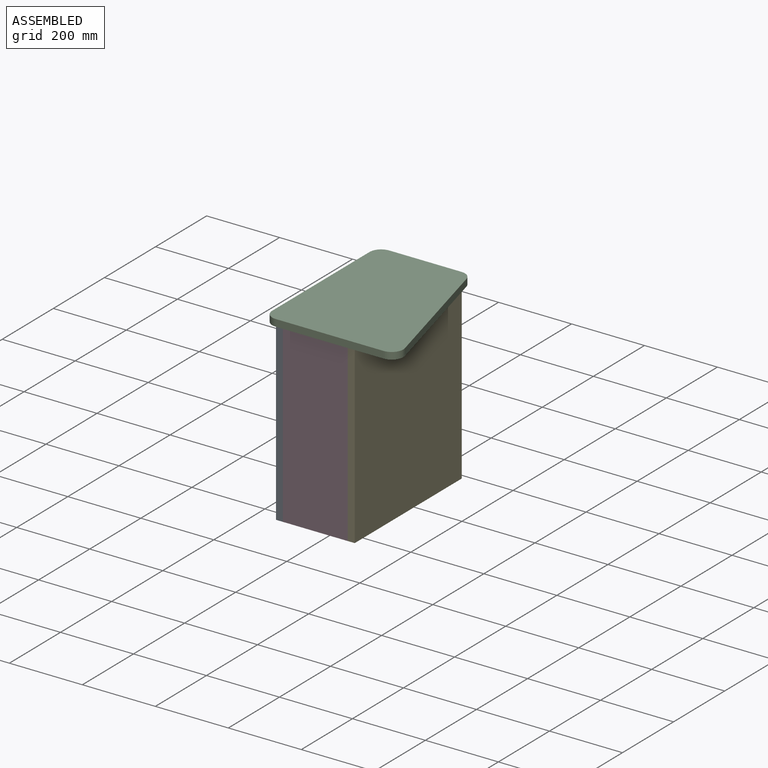
[diagram: assembled view]
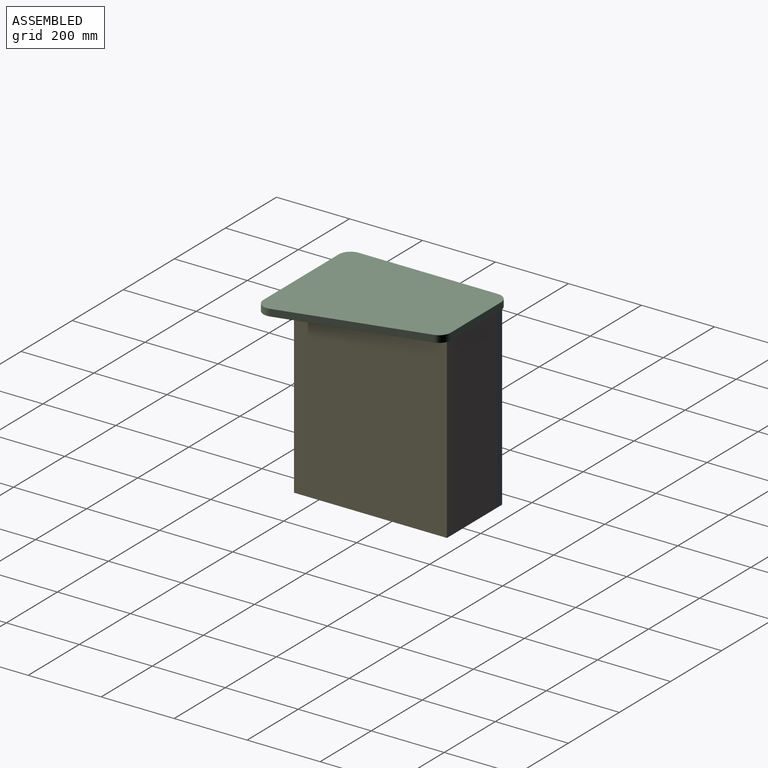
[diagram: assembled view, second angle]
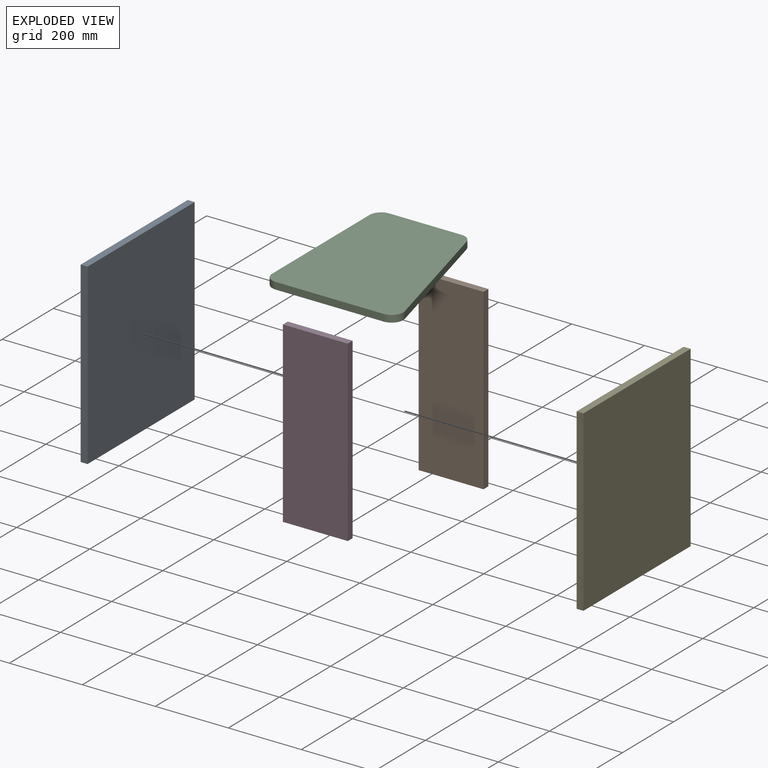
[diagram: exploded view]
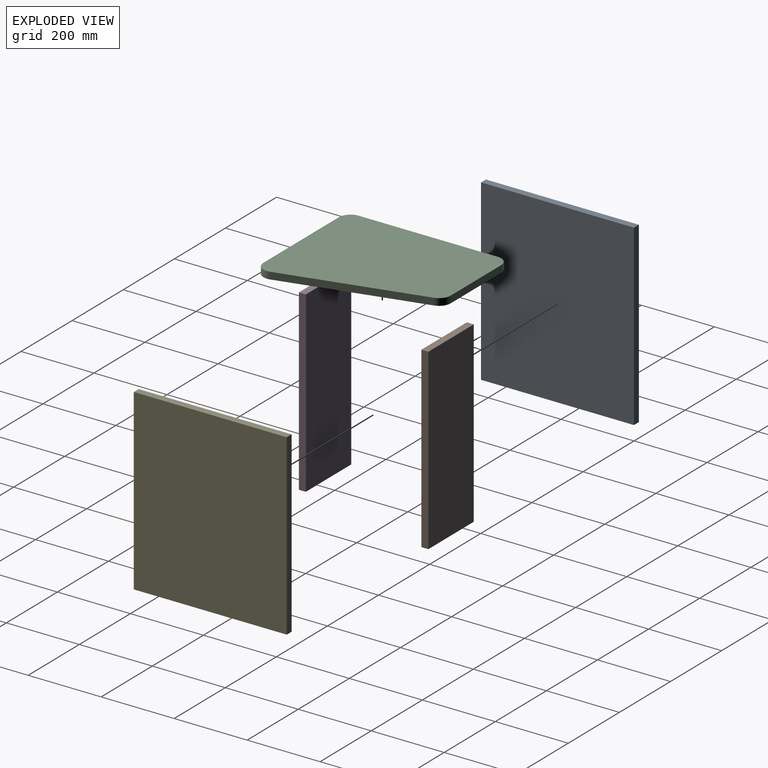
[diagram: exploded view, second angle]
ASSEMBLY  parts=5 mates=3
PART A: 6 faces, bbox 19.1x419.1x489 mm
  f0: plane 488.95x19.05mm, normal (0,-1,0), area 9314.5mm2, adj f1,f3,f4,f5
  f1: plane 419.1x19.05mm, normal (0,0,-1), area 7983.9mm2, adj f0,f2,f4,f5
  f2: plane 488.95x19.05mm, normal (0,1,0), area 9314.5mm2, adj f1,f3,f4,f5
  f3: plane 419.1x19.05mm, normal (0,0,1), area 7983.9mm2, adj f0,f2,f4,f5
  f4: plane 488.95x419.1mm, normal (1,0,0), area 204918.9mm2, adj f0,f1,f2,f3
  f5: plane 488.95x419.1mm, normal (-1,0,0), area 204918.9mm2, adj f0,f1,f2,f3
PART B: 6 faces, bbox 177.8x19.1x489 mm
  f0: plane 488.95x19.05mm, normal (-1,0,0), area 9314.5mm2, adj f1,f3,f4,f5
  f1: plane 177.8x19.05mm, normal (0,0,-1), area 3387.1mm2, adj f0,f2,f4,f5
  f2: plane 488.95x19.05mm, normal (1,0,0), area 9314.5mm2, adj f1,f3,f4,f5
  f3: plane 177.8x19.05mm, normal (0,0,1), area 3387.1mm2, adj f0,f2,f4,f5
  f4: plane 488.95x177.8mm, normal (0,-1,0), area 86935.3mm2, adj f0,f1,f2,f3
  f5: plane 488.95x177.8mm, normal (0,1,0), area 86935.3mm2, adj f0,f1,f2,f3
PART C: 10 faces, bbox 359.1x444.5x19.1 mm
  f0: plane 381x19.05mm, normal (-1,0,0), area 7258.1mm2, adj f1,f7,f8,f9
  f1: cylinder r=31.75mm len=31.75mm, axis (0,0,-1), area 950.1mm2, adj f0,f2,f8,f9
  f2: plane 295.6x19.05mm, normal (0,-1,0), area 5631.2mm2, adj f1,f3,f8,f9
  f3: cylinder r=31.75mm len=39.66mm, axis (0,0,-1), area 1102.3mm2, adj f2,f4,f8,f9
  f4: plane 381x97.97mm, normal (0.97,0.25,0), area 7494.2mm2, adj f3,f5,f8,f9
  f5: cylinder r=31.75mm len=30.75mm, axis (0,0,-1), area 797.8mm2, adj f4,f6,f8,f9
  f6: plane 197.63x19.05mm, normal (0,1,0), area 3764.9mm2, adj f5,f7,f8,f9
  f7: cylinder r=31.75mm len=31.75mm, axis (0,0,-1), area 950.1mm2, adj f0,f6,f8,f9
  f8: plane 444.5x359.1mm, normal (0,0,1), area 137375.3mm2, adj f0,f1,f2,f3,f4,f5,f6,f7
  f9: plane 444.5x359.1mm, normal (0,0,-1), area 137375.3mm2, adj f0,f1,f2,f3,f4,f5,f6,f7
PART D: same geometry as B
PART E: same geometry as A
PLACE A t=(267.61,-243.69,-33.64)mm
PLACE B t=(375.56,-34.14,-33.64)mm
PLACE C t=(375.56,-472.29,455.31)mm
PLACE D t=(375.56,-434.19,-33.64)mm
PLACE E t=(464.46,-243.69,-33.64)mm
MATE fastened E.f5 <-> B.f2  axis (-1,0,0) through (464.46,-34.14,-33.64)mm
MATE fastened B.f0 <-> A.f4  axis (-1,0,0) through (286.66,-34.14,-33.64)mm
MATE fastened D.f2 <-> E.f5  axis (1,0,0) through (464.46,-453.24,-33.64)mm
